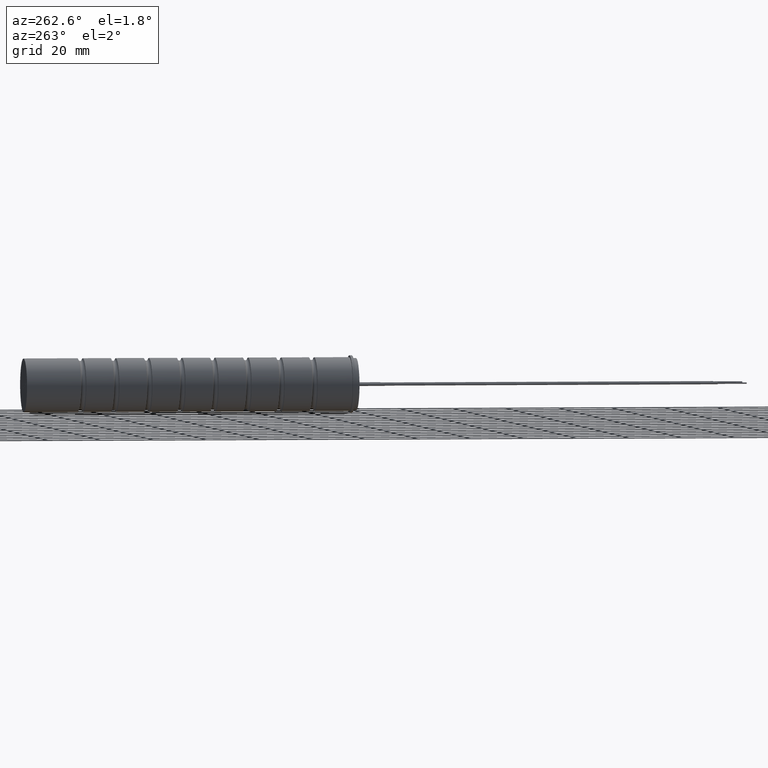
[diagram: clean part render]
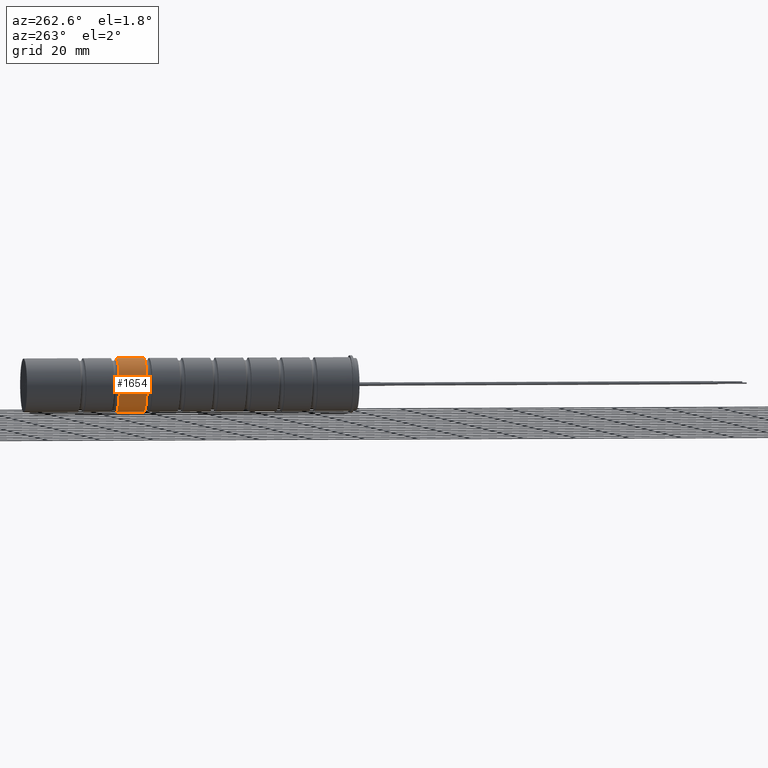
[diagram: same view with one face highlighted and labeled with its STEP entity id]
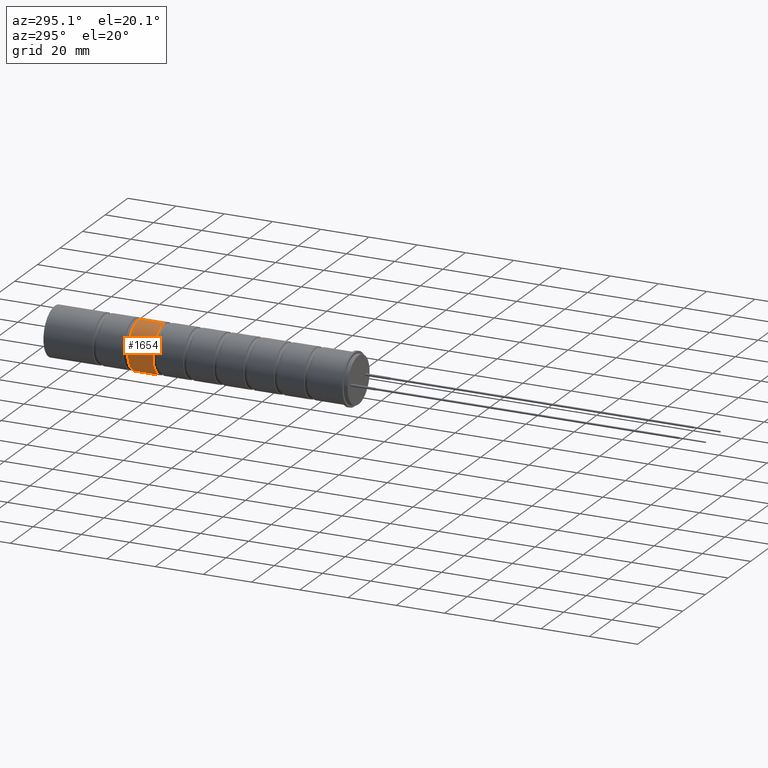
[diagram: same view with one face highlighted and labeled with its STEP entity id]
A machine part, auxiliary view. The second image highlights one B-rep face of the part: STEP entity #1654.
A second angle (auxiliary view) of the same face is appended — the face is thin or edge-on in the first view.
In plain terms, the highlighted cylindrical surface (edge-blend (fillet) strip) has radius 10.15 mm, axis along (-0, -1, -0).
Its self-contained STEP definition (entity closure, byte-faithful):
#245 = EDGE_LOOP ( 'NONE', ( #2980, #3786, #2562, #985 ) ) ;
#250 = CIRCLE ( 'NONE', #3666, 10.15000000000000000 ) ;
#252 = CARTESIAN_POINT ( 'NONE',  ( 0.0000000000000000000, 90.96676000000000800, -10.15000000000000000 ) ) ;
#561 = DIRECTION ( 'NONE',  ( -0.0000000000000000000, -1.000000000000000000, -0.0000000000000000000 ) ) ;
#781 = CARTESIAN_POINT ( 'NONE',  ( 1.243016501134563700E-015, 80.45181000000000900, 10.15000000000000000 ) ) ;
#791 = CARTESIAN_POINT ( 'NONE',  ( 0.0000000000000000000, 125.9000000000000100, -10.15000000000000000 ) ) ;
#884 = CIRCLE ( 'NONE', #1162, 10.15000000000000000 ) ;
#930 = DIRECTION ( 'NONE',  ( 0.0000000000000000000, 0.0000000000000000000, -1.000000000000000000 ) ) ;
#939 = EDGE_CURVE ( 'NONE', #3571, #2327, #1610, .T. ) ;
#985 = ORIENTED_EDGE ( 'NONE', *, *, #2113, .F. ) ;
#1162 = AXIS2_PLACEMENT_3D ( 'NONE', #4558, #2314, #4220 ) ;
#1447 = VERTEX_POINT ( 'NONE', #781 ) ;
#1458 = EDGE_CURVE ( 'NONE', #3571, #2704, #884, .T. ) ;
#1545 = CARTESIAN_POINT ( 'NONE',  ( 1.243016501134563700E-015, 90.96676000000000800, 10.15000000000000000 ) ) ;
#1593 = CARTESIAN_POINT ( 'NONE',  ( 0.0000000000000000000, 125.9000000000000100, 0.0000000000000000000 ) ) ;
#1610 = LINE ( 'NONE', #791, #2492 ) ;
#1654 = ADVANCED_FACE ( 'NONE', ( #3270 ), #2859, .T. ) ;
#2082 = CARTESIAN_POINT ( 'NONE',  ( 1.243016501134563700E-015, 125.9000000000000100, 10.15000000000000000 ) ) ;
#2113 = EDGE_CURVE ( 'NONE', #1447, #2327, #250, .T. ) ;
#2314 = DIRECTION ( 'NONE',  ( 0.0000000000000000000, 1.000000000000000000, 0.0000000000000000000 ) ) ;
#2327 = VERTEX_POINT ( 'NONE', #3356 ) ;
#2492 = VECTOR ( 'NONE', #3442, 1000.000000000000000 ) ;
#2562 = ORIENTED_EDGE ( 'NONE', *, *, #939, .T. ) ;
#2704 = VERTEX_POINT ( 'NONE', #1545 ) ;
#2816 = CARTESIAN_POINT ( 'NONE',  ( 0.0000000000000000000, 80.45181000000000900, 0.0000000000000000000 ) ) ;
#2859 = CYLINDRICAL_SURFACE ( 'NONE', #3661, 10.15000000000000000 ) ;
#2945 = LINE ( 'NONE', #2082, #3936 ) ;
#2980 = ORIENTED_EDGE ( 'NONE', *, *, #3837, .F. ) ;
#3270 = FACE_OUTER_BOUND ( 'NONE', #245, .T. ) ;
#3356 = CARTESIAN_POINT ( 'NONE',  ( 0.0000000000000000000, 80.45181000000000900, -10.15000000000000000 ) ) ;
#3442 = DIRECTION ( 'NONE',  ( -0.0000000000000000000, -1.000000000000000000, -0.0000000000000000000 ) ) ;
#3571 = VERTEX_POINT ( 'NONE', #252 ) ;
#3661 = AXIS2_PLACEMENT_3D ( 'NONE', #1593, #3793, #3822 ) ;
#3666 = AXIS2_PLACEMENT_3D ( 'NONE', #2816, #561, #930 ) ;
#3786 = ORIENTED_EDGE ( 'NONE', *, *, #1458, .F. ) ;
#3793 = DIRECTION ( 'NONE',  ( -0.0000000000000000000, -1.000000000000000000, -0.0000000000000000000 ) ) ;
#3822 = DIRECTION ( 'NONE',  ( 0.0000000000000000000, 0.0000000000000000000, -1.000000000000000000 ) ) ;
#3837 = EDGE_CURVE ( 'NONE', #2704, #1447, #2945, .T. ) ;
#3936 = VECTOR ( 'NONE', #4281, 1000.000000000000000 ) ;
#4220 = DIRECTION ( 'NONE',  ( 0.0000000000000000000, 0.0000000000000000000, 1.000000000000000000 ) ) ;
#4281 = DIRECTION ( 'NONE',  ( -0.0000000000000000000, -1.000000000000000000, -0.0000000000000000000 ) ) ;
#4558 = CARTESIAN_POINT ( 'NONE',  ( 0.0000000000000000000, 90.96676000000000800, 0.0000000000000000000 ) ) ;